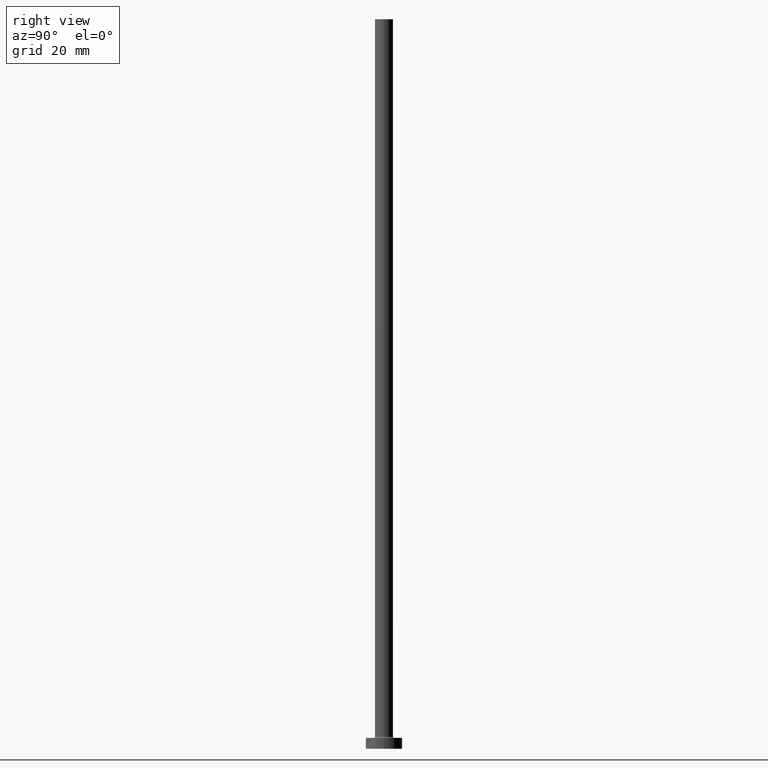
[diagram: clean part render]
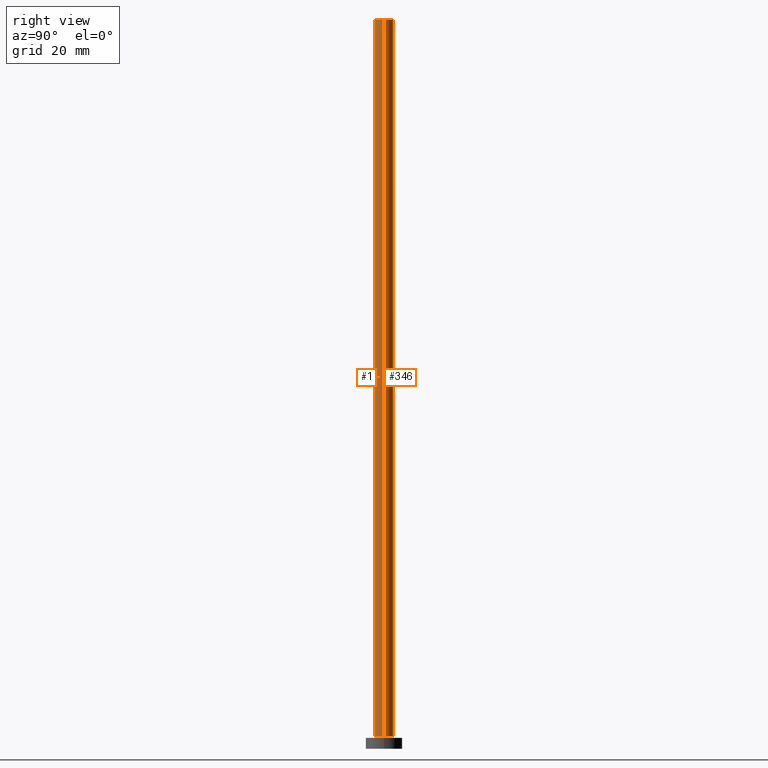
[diagram: same view with one multi-face feature highlighted, each face labeled with its STEP entity id]
A machine part, right view. The highlighted faces form ONE feature: a constant-radius fillet chain: 2 tangent blend faces with common blend radius 2.5 mm. The faces share edges in the B-rep.
Their STEP definitions:
[1] entity #346 (Cylinder):
#18 = ORIENTED_EDGE ( 'NONE', *, *, #324, .T. ) ;
#30 = AXIS2_PLACEMENT_3D ( 'NONE', #276, #210, #143 ) ;
#32 = CARTESIAN_POINT ( 'NONE',  ( 2.500000000000000000, 3.061616997868383141E-16, 3.299999999999997158 ) ) ;
#39 = EDGE_CURVE ( 'NONE', #52, #233, #78, .T. ) ;
#49 = DIRECTION ( 'NONE',  ( 1.000000000000000000, 0.000000000000000000, 0.000000000000000000 ) ) ;
#52 = VERTEX_POINT ( 'NONE', #297 ) ;
#70 = CARTESIAN_POINT ( 'NONE',  ( 2.500000000000000000, 3.061616997868383141E-16, 200.0000000000000000 ) ) ;
#75 = CARTESIAN_POINT ( 'NONE',  ( 0.000000000000000000, 0.000000000000000000, 200.0000000000000000 ) ) ;
#76 = DIRECTION ( 'NONE',  ( -0.000000000000000000, -0.000000000000000000, -1.000000000000000000 ) ) ;
#78 = LINE ( 'NONE', #87, #315 ) ;
#80 = AXIS2_PLACEMENT_3D ( 'NONE', #151, #82, #49 ) ;
#82 = DIRECTION ( 'NONE',  ( 0.000000000000000000, 0.000000000000000000, 1.000000000000000000 ) ) ;
#87 = CARTESIAN_POINT ( 'NONE',  ( -2.500000000000000000, 0.000000000000000000, 200.0000000000000000 ) ) ;
#107 = DIRECTION ( 'NONE',  ( -0.000000000000000000, -0.000000000000000000, -1.000000000000000000 ) ) ;
#124 = AXIS2_PLACEMENT_3D ( 'NONE', #75, #107, #181 ) ;
#125 = ORIENTED_EDGE ( 'NONE', *, *, #225, .T. ) ;
#143 = DIRECTION ( 'NONE',  ( 1.000000000000000000, 0.000000000000000000, 0.000000000000000000 ) ) ;
#151 = CARTESIAN_POINT ( 'NONE',  ( 0.000000000000000000, 0.000000000000000000, 3.299999999999997158 ) ) ;
#155 = CYLINDRICAL_SURFACE ( 'NONE', #124, 2.500000000000000000 ) ;
#181 = DIRECTION ( 'NONE',  ( -1.000000000000000000, 0.000000000000000000, 0.000000000000000000 ) ) ;
#210 = DIRECTION ( 'NONE',  ( 0.000000000000000000, 0.000000000000000000, 1.000000000000000000 ) ) ;
#225 = EDGE_CURVE ( 'NONE', #350, #359, #341, .T. ) ;
#233 = VERTEX_POINT ( 'NONE', #278 ) ;
#252 = CIRCLE ( 'NONE', #30, 2.500000000000000000 ) ;
#254 = EDGE_LOOP ( 'NONE', ( #441, #125, #18, #372 ) ) ;
#276 = CARTESIAN_POINT ( 'NONE',  ( 0.000000000000000000, 0.000000000000000000, 200.0000000000000000 ) ) ;
#278 = CARTESIAN_POINT ( 'NONE',  ( -2.500000000000000000, 0.000000000000000000, 3.299999999999997158 ) ) ;
#285 = EDGE_CURVE ( 'NONE', #350, #52, #252, .T. ) ;
#286 = CIRCLE ( 'NONE', #80, 2.500000000000000000 ) ;
#297 = CARTESIAN_POINT ( 'NONE',  ( -2.500000000000000000, 0.000000000000000000, 200.0000000000000000 ) ) ;
#312 = CARTESIAN_POINT ( 'NONE',  ( 2.500000000000000000, 3.061616997868383141E-16, 200.0000000000000000 ) ) ;
#315 = VECTOR ( 'NONE', #76, 1000.000000000000000 ) ;
#324 = EDGE_CURVE ( 'NONE', #359, #233, #286, .T. ) ;
#341 = LINE ( 'NONE', #312, #348 ) ;
#346 = ADVANCED_FACE ( 'NONE', ( #419 ), #155, .T. ) ;
#348 = VECTOR ( 'NONE', #411, 1000.000000000000000 ) ;
#350 = VERTEX_POINT ( 'NONE', #70 ) ;
#359 = VERTEX_POINT ( 'NONE', #32 ) ;
#372 = ORIENTED_EDGE ( 'NONE', *, *, #39, .F. ) ;
#411 = DIRECTION ( 'NONE',  ( -0.000000000000000000, -0.000000000000000000, -1.000000000000000000 ) ) ;
#419 = FACE_OUTER_BOUND ( 'NONE', #254, .T. ) ;
#441 = ORIENTED_EDGE ( 'NONE', *, *, #285, .F. ) ;
[2] entity #1 (Cylinder):
#1 = ADVANCED_FACE ( 'NONE', ( #386 ), #74, .T. ) ;
#20 = DIRECTION ( 'NONE',  ( 1.000000000000000000, 0.000000000000000000, 0.000000000000000000 ) ) ;
#32 = CARTESIAN_POINT ( 'NONE',  ( 2.500000000000000000, 3.061616997868383141E-16, 3.299999999999997158 ) ) ;
#39 = EDGE_CURVE ( 'NONE', #52, #233, #78, .T. ) ;
#43 = DIRECTION ( 'NONE',  ( 0.000000000000000000, 0.000000000000000000, 1.000000000000000000 ) ) ;
#52 = VERTEX_POINT ( 'NONE', #297 ) ;
#67 = ORIENTED_EDGE ( 'NONE', *, *, #130, .T. ) ;
#70 = CARTESIAN_POINT ( 'NONE',  ( 2.500000000000000000, 3.061616997868383141E-16, 200.0000000000000000 ) ) ;
#74 = CYLINDRICAL_SURFACE ( 'NONE', #370, 2.500000000000000000 ) ;
#76 = DIRECTION ( 'NONE',  ( -0.000000000000000000, -0.000000000000000000, -1.000000000000000000 ) ) ;
#78 = LINE ( 'NONE', #87, #315 ) ;
#87 = CARTESIAN_POINT ( 'NONE',  ( -2.500000000000000000, 0.000000000000000000, 200.0000000000000000 ) ) ;
#114 = CIRCLE ( 'NONE', #146, 2.500000000000000000 ) ;
#117 = CARTESIAN_POINT ( 'NONE',  ( 0.000000000000000000, 0.000000000000000000, 3.299999999999997158 ) ) ;
#130 = EDGE_CURVE ( 'NONE', #233, #359, #114, .T. ) ;
#142 = ORIENTED_EDGE ( 'NONE', *, *, #176, .F. ) ;
#146 = AXIS2_PLACEMENT_3D ( 'NONE', #117, #43, #20 ) ;
#152 = CARTESIAN_POINT ( 'NONE',  ( 0.000000000000000000, 0.000000000000000000, 200.0000000000000000 ) ) ;
#176 = EDGE_CURVE ( 'NONE', #52, #350, #408, .T. ) ;
#198 = CARTESIAN_POINT ( 'NONE',  ( 0.000000000000000000, 0.000000000000000000, 200.0000000000000000 ) ) ;
#217 = AXIS2_PLACEMENT_3D ( 'NONE', #198, #266, #398 ) ;
#225 = EDGE_CURVE ( 'NONE', #350, #359, #341, .T. ) ;
#229 = ORIENTED_EDGE ( 'NONE', *, *, #39, .T. ) ;
#233 = VERTEX_POINT ( 'NONE', #278 ) ;
#260 = ORIENTED_EDGE ( 'NONE', *, *, #225, .F. ) ;
#266 = DIRECTION ( 'NONE',  ( 0.000000000000000000, 0.000000000000000000, 1.000000000000000000 ) ) ;
#278 = CARTESIAN_POINT ( 'NONE',  ( -2.500000000000000000, 0.000000000000000000, 3.299999999999997158 ) ) ;
#297 = CARTESIAN_POINT ( 'NONE',  ( -2.500000000000000000, 0.000000000000000000, 200.0000000000000000 ) ) ;
#312 = CARTESIAN_POINT ( 'NONE',  ( 2.500000000000000000, 3.061616997868383141E-16, 200.0000000000000000 ) ) ;
#315 = VECTOR ( 'NONE', #76, 1000.000000000000000 ) ;
#341 = LINE ( 'NONE', #312, #348 ) ;
#348 = VECTOR ( 'NONE', #411, 1000.000000000000000 ) ;
#350 = VERTEX_POINT ( 'NONE', #70 ) ;
#359 = VERTEX_POINT ( 'NONE', #32 ) ;
#370 = AXIS2_PLACEMENT_3D ( 'NONE', #152, #416, #423 ) ;
#386 = FACE_OUTER_BOUND ( 'NONE', #421, .T. ) ;
#398 = DIRECTION ( 'NONE',  ( 1.000000000000000000, 0.000000000000000000, 0.000000000000000000 ) ) ;
#408 = CIRCLE ( 'NONE', #217, 2.500000000000000000 ) ;
#411 = DIRECTION ( 'NONE',  ( -0.000000000000000000, -0.000000000000000000, -1.000000000000000000 ) ) ;
#416 = DIRECTION ( 'NONE',  ( -0.000000000000000000, -0.000000000000000000, -1.000000000000000000 ) ) ;
#421 = EDGE_LOOP ( 'NONE', ( #260, #142, #229, #67 ) ) ;
#423 = DIRECTION ( 'NONE',  ( -1.000000000000000000, 0.000000000000000000, 0.000000000000000000 ) ) ;